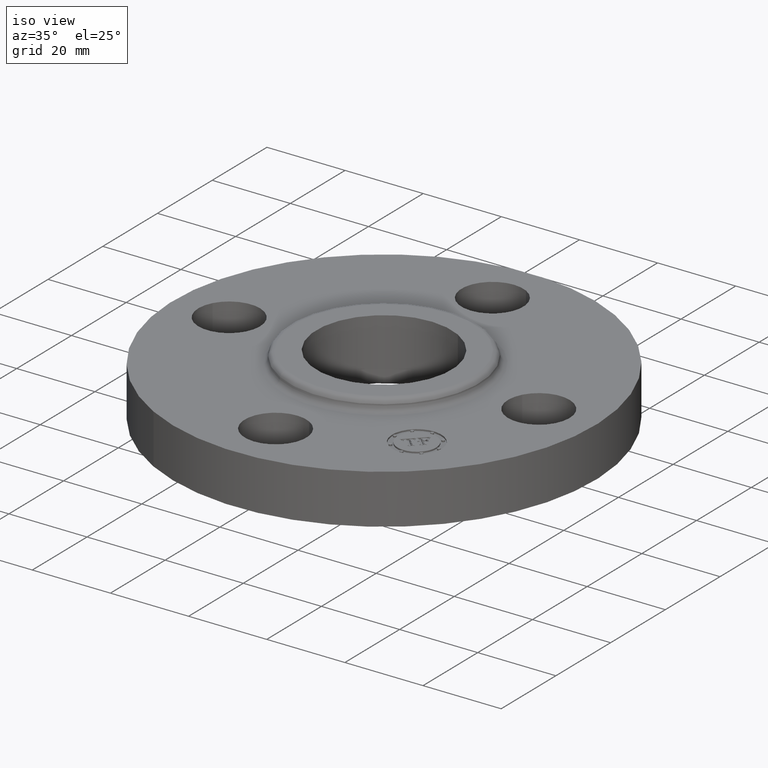
[diagram: clean part render]
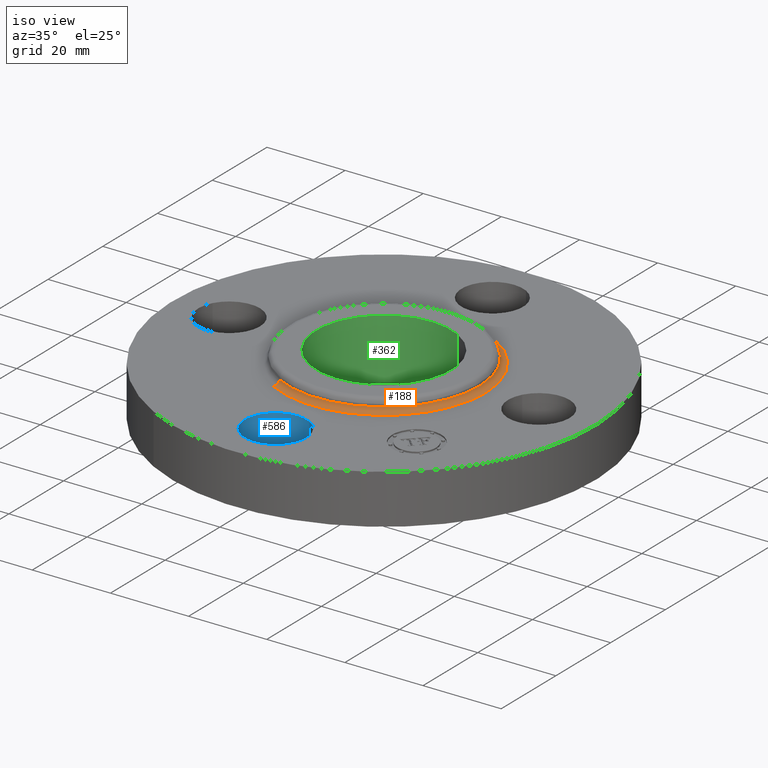
[diagram: same view with three faces highlighted in distinct colors, each labeled with its STEP entity id]
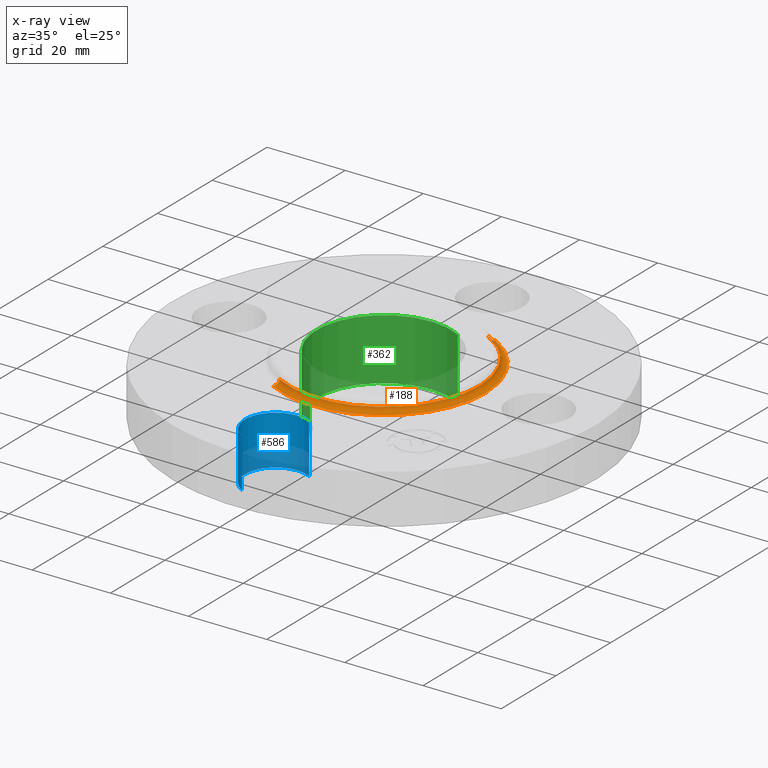
[diagram: x-ray of the same camera — body ghosted, the three highlighted faces saturated]
A machine part, iso view with three faces highlighted in distinct colors.
The next image is the same camera in x-ray (body ghosted, the three faces saturated) — at least one of them is partly hidden behind the body in this view.
Their STEP definitions:

[orange] entity #188 — the highlighted toroidal blend (fillet) surface has major radius 25.9168 mm and minor (blend) radius 1.524 mm.
#152=AXIS2_PLACEMENT_3D('Torus Axis2P3D',#149,#150,#151) ;
#156=AXIS2_PLACEMENT_3D('Circle Axis2P3D',#154,#155,$) ;
#165=AXIS2_PLACEMENT_3D('Circle Axis2P3D',#163,#164,$) ;
#172=AXIS2_PLACEMENT_3D('Circle Axis2P3D',#170,#171,$) ;
#179=AXIS2_PLACEMENT_3D('Circle Axis2P3D',#177,#178,$) ;
#149=CARTESIAN_POINT('Axis2P3D Location',(0.,0.,0.560000000002)) ;
#154=CARTESIAN_POINT('Axis2P3D Location',(0.,0.,0.500000000002)) ;
#158=CARTESIAN_POINT('Vertex',(0.489179920005,0.895437837278,0.500000000002)) ;
#160=CARTESIAN_POINT('Vertex',(-0.489179920005,-0.895437837278,0.500000000002)) ;
#163=CARTESIAN_POINT('Axis2P3D Location',(0.489179920005,0.895437837278,0.560000000002)) ;
#167=CARTESIAN_POINT('Vertex',(0.460851400761,0.843582830626,0.549581109342)) ;
#170=CARTESIAN_POINT('Axis2P3D Location',(0.,0.,0.549581109342)) ;
#174=CARTESIAN_POINT('Vertex',(-0.460851400761,-0.843582830626,0.549581109342)) ;
#177=CARTESIAN_POINT('Axis2P3D Location',(-0.489179920005,-0.895437837278,0.560000000002)) ;
#150=DIRECTION('Axis2P3D Direction',(0.,0.,-0.0393700787402)) ;
#151=DIRECTION('Axis2P3D XDirection',(-0.0188750212049,-0.0345504945626,0.)) ;
#155=DIRECTION('Axis2P3D Direction',(0.,0.,-0.0393700787402)) ;
#164=DIRECTION('Axis2P3D Direction',(-0.0345504945626,0.0188750212049,0.)) ;
#171=DIRECTION('Axis2P3D Direction',(0.,0.,-0.0393700787402)) ;
#178=DIRECTION('Axis2P3D Direction',(0.0345504945626,-0.0188750212049,0.)) ;
#183=ORIENTED_EDGE('',*,*,#162,.F.) ;
#184=ORIENTED_EDGE('',*,*,#169,.T.) ;
#185=ORIENTED_EDGE('',*,*,#176,.T.) ;
#186=ORIENTED_EDGE('',*,*,#181,.F.) ;
#188=ADVANCED_FACE('PartBody',(#187),#153,.F.) ;
#157=CIRCLE('generated circle',#156,1.02034597787) ;
#166=CIRCLE('generated circle',#165,0.0600000000002) ;
#173=CIRCLE('generated circle',#172,0.961257512694) ;
#180=CIRCLE('generated circle',#179,0.0600000000002) ;
#153=TOROIDAL_SURFACE('homeo Torus',#152,1.02034597787,0.0600000000002) ;
#162=EDGE_CURVE('',#159,#161,#157,.T.) ;
#169=EDGE_CURVE('',#159,#168,#166,.T.) ;
#176=EDGE_CURVE('',#168,#175,#173,.T.) ;
#181=EDGE_CURVE('',#161,#175,#180,.T.) ;
#182=EDGE_LOOP('',(#183,#184,#185,#186)) ;
#187=FACE_OUTER_BOUND('',#182,.T.) ;
#159=VERTEX_POINT('',#158) ;
#161=VERTEX_POINT('',#160) ;
#168=VERTEX_POINT('',#167) ;
#175=VERTEX_POINT('',#174) ;

[blue] entity #586 — the highlighted cylindrical surface (partial cylindrical patch) has radius 7.874 mm, axis along (0, -0, -1).
#414=AXIS2_PLACEMENT_3D('Circle Axis2P3D',#412,#413,$) ;
#547=AXIS2_PLACEMENT_3D('Cylinder Axis2P3D',#544,#545,#546) ;
#577=AXIS2_PLACEMENT_3D('Circle Axis2P3D',#575,#576,$) ;
#407=CARTESIAN_POINT('Vertex',(0.148621916968,-1.28794940582,0.)) ;
#409=CARTESIAN_POINT('Vertex',(-0.148621916968,-1.83205059419,0.)) ;
#412=CARTESIAN_POINT('Axis2P3D Location',(-3.1470888887E-016,-1.56000000001,0.)) ;
#544=CARTESIAN_POINT('Axis2P3D Location',(-1.84218784217E-016,-1.56000000001,0.496062992128)) ;
#549=CARTESIAN_POINT('Line Origine',(0.148621916968,-1.28794940582,0.250000000001)) ;
#553=CARTESIAN_POINT('Vertex',(0.148621916968,-1.28794940582,0.500000000002)) ;
#556=CARTESIAN_POINT('Line Origine',(-0.148621916968,-1.83205059419,0.250000000001)) ;
#560=CARTESIAN_POINT('Vertex',(-0.148621916968,-1.83205059419,0.500000000002)) ;
#575=CARTESIAN_POINT('Axis2P3D Location',(-1.84218784217E-016,-1.56000000001,0.500000000002)) ;
#413=DIRECTION('Axis2P3D Direction',(0.,0.,-0.0393700787402)) ;
#545=DIRECTION('Axis2P3D Direction',(0.,-0.,-0.0393700787402)) ;
#546=DIRECTION('Axis2P3D XDirection',(-0.0188750212049,-0.0345504945626,0.)) ;
#550=DIRECTION('Vector Direction',(0.,0.,-0.0393700787402)) ;
#557=DIRECTION('Vector Direction',(0.,0.,-0.0393700787402)) ;
#576=DIRECTION('Axis2P3D Direction',(0.,-0.,-0.0393700787402)) ;
#551=VECTOR('Line Direction',#550,0.0393700787402) ;
#558=VECTOR('Line Direction',#557,0.0393700787402) ;
#581=ORIENTED_EDGE('',*,*,#562,.F.) ;
#582=ORIENTED_EDGE('',*,*,#416,.T.) ;
#583=ORIENTED_EDGE('',*,*,#555,.T.) ;
#584=ORIENTED_EDGE('',*,*,#579,.F.) ;
#586=ADVANCED_FACE('PartBody',(#585),#548,.F.) ;
#415=CIRCLE('generated circle',#414,0.310000000001) ;
#578=CIRCLE('generated circle',#577,0.310000000001) ;
#548=CYLINDRICAL_SURFACE('generated cylinder',#547,0.310000000001) ;
#416=EDGE_CURVE('',#410,#408,#415,.T.) ;
#555=EDGE_CURVE('',#408,#554,#552,.F.) ;
#562=EDGE_CURVE('',#410,#561,#559,.F.) ;
#579=EDGE_CURVE('',#561,#554,#578,.T.) ;
#580=EDGE_LOOP('',(#581,#582,#583,#584)) ;
#585=FACE_OUTER_BOUND('',#580,.T.) ;
#552=LINE('Line',#549,#551) ;
#559=LINE('Line',#556,#558) ;
#408=VERTEX_POINT('',#407) ;
#410=VERTEX_POINT('',#409) ;
#554=VERTEX_POINT('',#553) ;
#561=VERTEX_POINT('',#560) ;

[green] entity #362 — the highlighted cylindrical surface (partial cylindrical patch) has radius 17.272 mm, axis along (0, 0, -1).
#303=AXIS2_PLACEMENT_3D('Circle Axis2P3D',#301,#302,$) ;
#323=AXIS2_PLACEMENT_3D('Cylinder Axis2P3D',#320,#321,#322) ;
#353=AXIS2_PLACEMENT_3D('Circle Axis2P3D',#351,#352,$) ;
#301=CARTESIAN_POINT('Axis2P3D Location',(0.,0.,0.620000000002)) ;
#305=CARTESIAN_POINT('Vertex',(-0.326009366252,-0.596756142088,0.620000000002)) ;
#307=CARTESIAN_POINT('Vertex',(0.326009366252,0.596756142088,0.620000000002)) ;
#320=CARTESIAN_POINT('Axis2P3D Location',(0.,0.,0.310000000001)) ;
#325=CARTESIAN_POINT('Line Origine',(0.326009366252,0.596756142088,0.310000000001)) ;
#329=CARTESIAN_POINT('Vertex',(0.326009366252,0.596756142088,-6.57391901195E-015)) ;
#336=CARTESIAN_POINT('Vertex',(-0.326009366252,-0.596756142088,-6.57391901195E-015)) ;
#339=CARTESIAN_POINT('Line Origine',(-0.326009366252,-0.596756142088,0.310000000001)) ;
#351=CARTESIAN_POINT('Axis2P3D Location',(0.,0.,-6.71378962923E-015)) ;
#302=DIRECTION('Axis2P3D Direction',(0.,0.,-0.0393700787402)) ;
#321=DIRECTION('Axis2P3D Direction',(0.,0.,-0.0393700787402)) ;
#322=DIRECTION('Axis2P3D XDirection',(-0.0188750212049,-0.0345504945626,0.)) ;
#326=DIRECTION('Vector Direction',(0.,0.,-0.0393700787402)) ;
#340=DIRECTION('Vector Direction',(0.,0.,-0.0393700787402)) ;
#352=DIRECTION('Axis2P3D Direction',(0.,0.,-0.0393700787402)) ;
#327=VECTOR('Line Direction',#326,0.0393700787402) ;
#341=VECTOR('Line Direction',#340,0.0393700787402) ;
#357=ORIENTED_EDGE('',*,*,#309,.F.) ;
#358=ORIENTED_EDGE('',*,*,#343,.T.) ;
#359=ORIENTED_EDGE('',*,*,#355,.T.) ;
#360=ORIENTED_EDGE('',*,*,#331,.F.) ;
#362=ADVANCED_FACE('PartBody',(#361),#324,.F.) ;
#304=CIRCLE('generated circle',#303,0.680000000003) ;
#354=CIRCLE('generated circle',#353,0.680000000003) ;
#324=CYLINDRICAL_SURFACE('generated cylinder',#323,0.680000000003) ;
#309=EDGE_CURVE('',#306,#308,#304,.T.) ;
#331=EDGE_CURVE('',#308,#330,#328,.T.) ;
#343=EDGE_CURVE('',#306,#337,#342,.T.) ;
#355=EDGE_CURVE('',#337,#330,#354,.T.) ;
#356=EDGE_LOOP('',(#357,#358,#359,#360)) ;
#361=FACE_OUTER_BOUND('',#356,.T.) ;
#328=LINE('Line',#325,#327) ;
#342=LINE('Line',#339,#341) ;
#306=VERTEX_POINT('',#305) ;
#308=VERTEX_POINT('',#307) ;
#330=VERTEX_POINT('',#329) ;
#337=VERTEX_POINT('',#336) ;